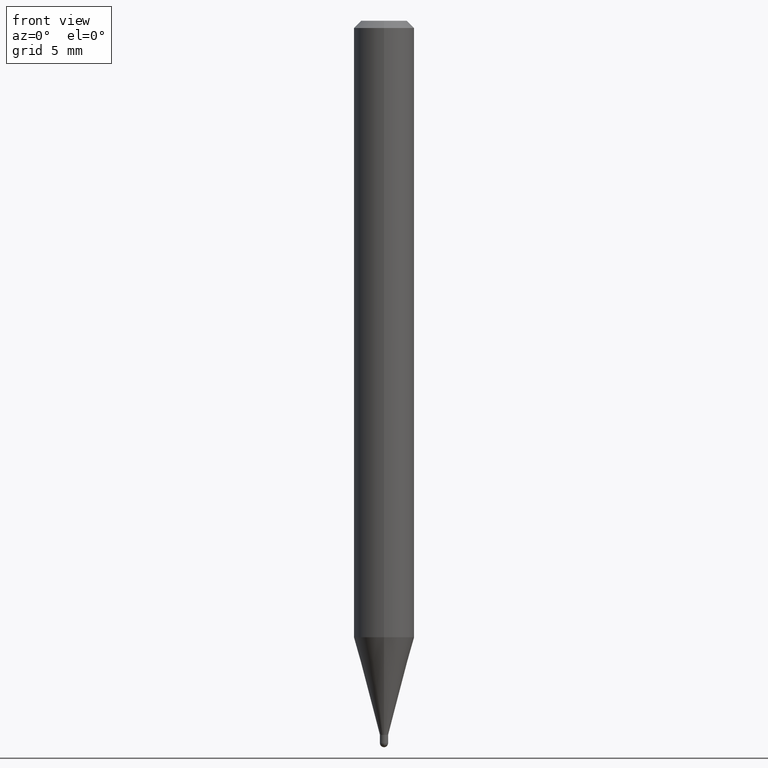
[diagram: clean part render]
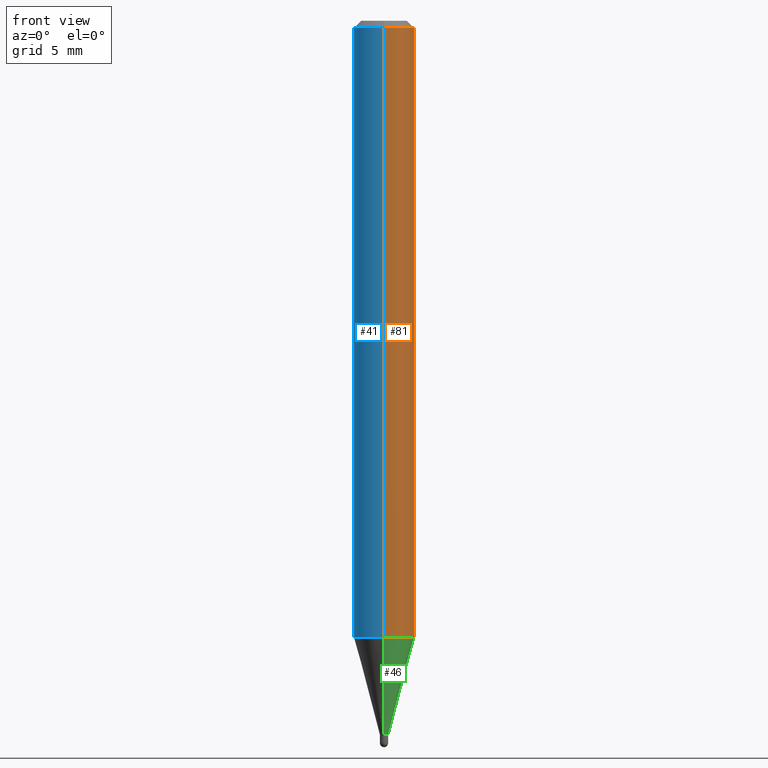
[diagram: same view with three faces highlighted in distinct colors, each labeled with its STEP entity id]
A machine part, front view with three faces highlighted in distinct colors.
Their STEP definitions:

[orange] entity #81 — the highlighted cylindrical surface (edge-blend (fillet) strip) has radius 1.5875 mm, axis along (-0, 0, 1).
#2 = VERTEX_POINT ( 'NONE', #148 ) ;
#8 = VERTEX_POINT ( 'NONE', #30 ) ;
#12 = CARTESIAN_POINT ( 'NONE',  ( 3.668218964304929807E-31, -5.237199446169058048E-17, -0.01500000000000006710 ) ) ;
#24 = CARTESIAN_POINT ( 'NONE',  ( -4.364351673553916201E-16, -0.06250000000000000000, 2.182166435903764727E-16 ) ) ;
#25 = CARTESIAN_POINT ( 'NONE',  ( 4.440892098500625669E-16, 0.06250000000000000000, -2.182166435903764727E-16 ) ) ;
#28 = DIRECTION ( 'NONE',  ( -2.445479309536609373E-29, 3.491466297446023562E-15, 1.000000000000000000 ) ) ;
#30 = CARTESIAN_POINT ( 'NONE',  ( -4.364351673553605587E-16, -0.06250000000000445477, -1.272969256391287551 ) ) ;
#34 = CARTESIAN_POINT ( 'NONE',  ( 3.113019978181097375E-29, -4.444529256375107421E-15, -1.272969256391287773 ) ) ;
#81 = ADVANCED_FACE ( 'NONE', ( #365 ), #300, .T. ) ;
#115 = VERTEX_POINT ( 'NONE', #431 ) ;
#131 = AXIS2_PLACEMENT_3D ( 'NONE', #34, #184, #228 ) ;
#135 = ORIENTED_EDGE ( 'NONE', *, *, #435, .T. ) ;
#148 = CARTESIAN_POINT ( 'NONE',  ( -4.364351673553912750E-16, -0.06250000000000005551, -0.01499999999999984852 ) ) ;
#163 = DIRECTION ( 'NONE',  ( -2.445479309536609093E-29, 3.491466297446023562E-15, 1.000000000000000000 ) ) ;
#168 = AXIS2_PLACEMENT_3D ( 'NONE', #12, #163, #487 ) ;
#184 = DIRECTION ( 'NONE',  ( -2.445479309536609093E-29, 3.491466297446023562E-15, 1.000000000000000000 ) ) ;
#219 = EDGE_CURVE ( 'NONE', #115, #488, #460, .T. ) ;
#228 = DIRECTION ( 'NONE',  ( -6.982962677686265922E-15, -1.000000000000000000, 4.370956789862821150E-15 ) ) ;
#243 = ORIENTED_EDGE ( 'NONE', *, *, #361, .F. ) ;
#269 = DIRECTION ( 'NONE',  ( -2.445479309536609093E-29, 3.491466297446023562E-15, 1.000000000000000000 ) ) ;
#286 = VECTOR ( 'NONE', #28, 39.37007874015748143 ) ;
#294 = AXIS2_PLACEMENT_3D ( 'NONE', #397, #269, #466 ) ;
#300 = CYLINDRICAL_SURFACE ( 'NONE', #294, 0.06250000000000000000 ) ;
#341 = ORIENTED_EDGE ( 'NONE', *, *, #403, .F. ) ;
#361 = EDGE_CURVE ( 'NONE', #2, #488, #427, .T. ) ;
#365 = FACE_OUTER_BOUND ( 'NONE', #453, .T. ) ;
#366 = CIRCLE ( 'NONE', #131, 0.06250000000000000000 ) ;
#383 = ORIENTED_EDGE ( 'NONE', *, *, #219, .T. ) ;
#392 = CARTESIAN_POINT ( 'NONE',  ( 4.440892098500938748E-16, 0.06249999999999995143, -0.01500000000000028394 ) ) ;
#397 = CARTESIAN_POINT ( 'NONE',  ( 0.000000000000000000, 0.000000000000000000, 0.000000000000000000 ) ) ;
#402 = VECTOR ( 'NONE', #433, 39.37007874015748143 ) ;
#403 = EDGE_CURVE ( 'NONE', #8, #2, #503, .T. ) ;
#427 = CIRCLE ( 'NONE', #168, 0.06250000000000000000 ) ;
#431 = CARTESIAN_POINT ( 'NONE',  ( 4.440892098500935790E-16, 0.06249999999999554523, -1.272969256391287995 ) ) ;
#433 = DIRECTION ( 'NONE',  ( -2.445479309536609373E-29, 3.491466297446023562E-15, 1.000000000000000000 ) ) ;
#435 = EDGE_CURVE ( 'NONE', #8, #115, #366, .T. ) ;
#453 = EDGE_LOOP ( 'NONE', ( #135, #383, #243, #341 ) ) ;
#460 = LINE ( 'NONE', #25, #286 ) ;
#466 = DIRECTION ( 'NONE',  ( -6.982962677686265922E-15, -1.000000000000000000, 3.491466297446023562E-15 ) ) ;
#487 = DIRECTION ( 'NONE',  ( -6.982962677686265922E-15, -1.000000000000000000, 3.483106191921935554E-15 ) ) ;
#488 = VERTEX_POINT ( 'NONE', #392 ) ;
#503 = LINE ( 'NONE', #24, #402 ) ;

[blue] entity #41 — the highlighted cylindrical surface (edge-blend (fillet) strip) has radius 1.5875 mm, axis along (-0, 0, 1).
#2 = VERTEX_POINT ( 'NONE', #148 ) ;
#8 = VERTEX_POINT ( 'NONE', #30 ) ;
#24 = CARTESIAN_POINT ( 'NONE',  ( -4.364351673553916201E-16, -0.06250000000000000000, 2.182166435903764727E-16 ) ) ;
#25 = CARTESIAN_POINT ( 'NONE',  ( 4.440892098500625669E-16, 0.06250000000000000000, -2.182166435903764727E-16 ) ) ;
#28 = DIRECTION ( 'NONE',  ( -2.445479309536609373E-29, 3.491466297446023562E-15, 1.000000000000000000 ) ) ;
#30 = CARTESIAN_POINT ( 'NONE',  ( -4.364351673553605587E-16, -0.06250000000000445477, -1.272969256391287551 ) ) ;
#33 = ORIENTED_EDGE ( 'NONE', *, *, #38, .F. ) ;
#35 = AXIS2_PLACEMENT_3D ( 'NONE', #351, #133, #422 ) ;
#38 = EDGE_CURVE ( 'NONE', #488, #2, #497, .T. ) ;
#39 = DIRECTION ( 'NONE',  ( -6.982962677686265922E-15, -1.000000000000000000, 3.491466297446023562E-15 ) ) ;
#41 = ADVANCED_FACE ( 'NONE', ( #237 ), #505, .T. ) ;
#65 = ORIENTED_EDGE ( 'NONE', *, *, #454, .T. ) ;
#107 = AXIS2_PLACEMENT_3D ( 'NONE', #193, #398, #39 ) ;
#115 = VERTEX_POINT ( 'NONE', #431 ) ;
#123 = EDGE_LOOP ( 'NONE', ( #510, #65, #129, #33 ) ) ;
#129 = ORIENTED_EDGE ( 'NONE', *, *, #403, .T. ) ;
#133 = DIRECTION ( 'NONE',  ( -2.445479309536609093E-29, 3.491466297446023562E-15, 1.000000000000000000 ) ) ;
#148 = CARTESIAN_POINT ( 'NONE',  ( -4.364351673553912750E-16, -0.06250000000000005551, -0.01499999999999984852 ) ) ;
#193 = CARTESIAN_POINT ( 'NONE',  ( 0.000000000000000000, 0.000000000000000000, 0.000000000000000000 ) ) ;
#219 = EDGE_CURVE ( 'NONE', #115, #488, #460, .T. ) ;
#237 = FACE_OUTER_BOUND ( 'NONE', #123, .T. ) ;
#286 = VECTOR ( 'NONE', #28, 39.37007874015748143 ) ;
#350 = DIRECTION ( 'NONE',  ( -6.982962677686265922E-15, -1.000000000000000000, 3.483106191921935554E-15 ) ) ;
#351 = CARTESIAN_POINT ( 'NONE',  ( 3.113019978181097375E-29, -4.444529256375107421E-15, -1.272969256391287773 ) ) ;
#356 = CARTESIAN_POINT ( 'NONE',  ( 3.668218964304929807E-31, -5.237199446169058048E-17, -0.01500000000000006710 ) ) ;
#392 = CARTESIAN_POINT ( 'NONE',  ( 4.440892098500938748E-16, 0.06249999999999995143, -0.01500000000000028394 ) ) ;
#398 = DIRECTION ( 'NONE',  ( -2.445479309536609093E-29, 3.491466297446023562E-15, 1.000000000000000000 ) ) ;
#402 = VECTOR ( 'NONE', #433, 39.37007874015748143 ) ;
#403 = EDGE_CURVE ( 'NONE', #8, #2, #503, .T. ) ;
#419 = CIRCLE ( 'NONE', #35, 0.06250000000000000000 ) ;
#422 = DIRECTION ( 'NONE',  ( -6.982962677686265922E-15, -1.000000000000000000, 4.370956789862821150E-15 ) ) ;
#431 = CARTESIAN_POINT ( 'NONE',  ( 4.440892098500935790E-16, 0.06249999999999554523, -1.272969256391287995 ) ) ;
#433 = DIRECTION ( 'NONE',  ( -2.445479309536609373E-29, 3.491466297446023562E-15, 1.000000000000000000 ) ) ;
#454 = EDGE_CURVE ( 'NONE', #115, #8, #419, .T. ) ;
#460 = LINE ( 'NONE', #25, #286 ) ;
#468 = AXIS2_PLACEMENT_3D ( 'NONE', #356, #474, #350 ) ;
#474 = DIRECTION ( 'NONE',  ( -2.445479309536609093E-29, 3.491466297446023562E-15, 1.000000000000000000 ) ) ;
#488 = VERTEX_POINT ( 'NONE', #392 ) ;
#497 = CIRCLE ( 'NONE', #468, 0.06250000000000000000 ) ;
#503 = LINE ( 'NONE', #24, #402 ) ;
#505 = CYLINDRICAL_SURFACE ( 'NONE', #107, 0.06250000000000000000 ) ;
#510 = ORIENTED_EDGE ( 'NONE', *, *, #219, .F. ) ;

[green] entity #46 — the highlighted conical surface has half-angle 15 deg.
#7 = CARTESIAN_POINT ( 'NONE',  ( 3.605859241911730090E-29, -5.148167055584161688E-15, -1.474500000000000144 ) ) ;
#8 = VERTEX_POINT ( 'NONE', #30 ) ;
#15 = ORIENTED_EDGE ( 'NONE', *, *, #435, .F. ) ;
#20 = VECTOR ( 'NONE', #301, 39.37007874015748854 ) ;
#27 = LINE ( 'NONE', #143, #20 ) ;
#30 = CARTESIAN_POINT ( 'NONE',  ( -4.364351673553605587E-16, -0.06250000000000445477, -1.272969256391287551 ) ) ;
#34 = CARTESIAN_POINT ( 'NONE',  ( 3.113019978181097375E-29, -4.444529256375107421E-15, -1.272969256391287773 ) ) ;
#46 = ADVANCED_FACE ( 'NONE', ( #73 ), #353, .T. ) ;
#49 = AXIS2_PLACEMENT_3D ( 'NONE', #7, #200, #161 ) ;
#57 = AXIS2_PLACEMENT_3D ( 'NONE', #106, #265, #136 ) ;
#64 = CARTESIAN_POINT ( 'NONE',  ( 6.039613253964597870E-17, 0.008499999999995049710, -1.474500000000000144 ) ) ;
#73 = FACE_OUTER_BOUND ( 'NONE', #120, .T. ) ;
#106 = CARTESIAN_POINT ( 'NONE',  ( 3.605859241911730090E-29, -5.148167055584161688E-15, -1.474500000000000144 ) ) ;
#115 = VERTEX_POINT ( 'NONE', #431 ) ;
#120 = EDGE_LOOP ( 'NONE', ( #185, #164, #15, #405 ) ) ;
#124 = EDGE_CURVE ( 'NONE', #271, #374, #214, .T. ) ;
#131 = AXIS2_PLACEMENT_3D ( 'NONE', #34, #184, #228 ) ;
#136 = DIRECTION ( 'NONE',  ( -6.982962677686265922E-15, -1.000000000000000000, 0.000000000000000000 ) ) ;
#143 = CARTESIAN_POINT ( 'NONE',  ( -5.935518276029858083E-17, -0.008500000000005345294, -1.474500000000000144 ) ) ;
#161 = DIRECTION ( 'NONE',  ( -6.982962677686265922E-15, -1.000000000000000000, 0.000000000000000000 ) ) ;
#164 = ORIENTED_EDGE ( 'NONE', *, *, #463, .T. ) ;
#180 = CARTESIAN_POINT ( 'NONE',  ( -5.935518276029858083E-17, -0.008500000000005345294, -1.474500000000000144 ) ) ;
#184 = DIRECTION ( 'NONE',  ( -2.445479309536609093E-29, 3.491466297446023562E-15, 1.000000000000000000 ) ) ;
#185 = ORIENTED_EDGE ( 'NONE', *, *, #124, .T. ) ;
#200 = DIRECTION ( 'NONE',  ( -2.445479309536609093E-29, 3.491466297446023562E-15, 1.000000000000000000 ) ) ;
#214 = CIRCLE ( 'NONE', #49, 0.008500000000000198369 ) ;
#217 = CARTESIAN_POINT ( 'NONE',  ( 2.522426711948700069E-16, 0.008499999999995049710, -1.474500000000000144 ) ) ;
#228 = DIRECTION ( 'NONE',  ( -6.982962677686265922E-15, -1.000000000000000000, 4.370956789862821150E-15 ) ) ;
#262 = DIRECTION ( 'NONE',  ( 1.839019923739648830E-15, 0.2588190451025317862, 0.9659258262890653146 ) ) ;
#265 = DIRECTION ( 'NONE',  ( -2.445479309536609093E-29, 3.491466297446023562E-15, 1.000000000000000000 ) ) ;
#271 = VERTEX_POINT ( 'NONE', #180 ) ;
#301 = DIRECTION ( 'NONE',  ( -1.807323732225377865E-15, -0.2588190451025250138, 0.9659258262890670910 ) ) ;
#353 = CONICAL_SURFACE ( 'NONE', #57, 0.008500000000000198369, 0.2617993877991573459 ) ;
#366 = CIRCLE ( 'NONE', #131, 0.06250000000000000000 ) ;
#374 = VERTEX_POINT ( 'NONE', #217 ) ;
#405 = ORIENTED_EDGE ( 'NONE', *, *, #424, .F. ) ;
#412 = VECTOR ( 'NONE', #262, 39.37007874015748143 ) ;
#424 = EDGE_CURVE ( 'NONE', #271, #8, #27, .T. ) ;
#430 = LINE ( 'NONE', #64, #412 ) ;
#431 = CARTESIAN_POINT ( 'NONE',  ( 4.440892098500935790E-16, 0.06249999999999554523, -1.272969256391287995 ) ) ;
#435 = EDGE_CURVE ( 'NONE', #8, #115, #366, .T. ) ;
#463 = EDGE_CURVE ( 'NONE', #374, #115, #430, .T. ) ;